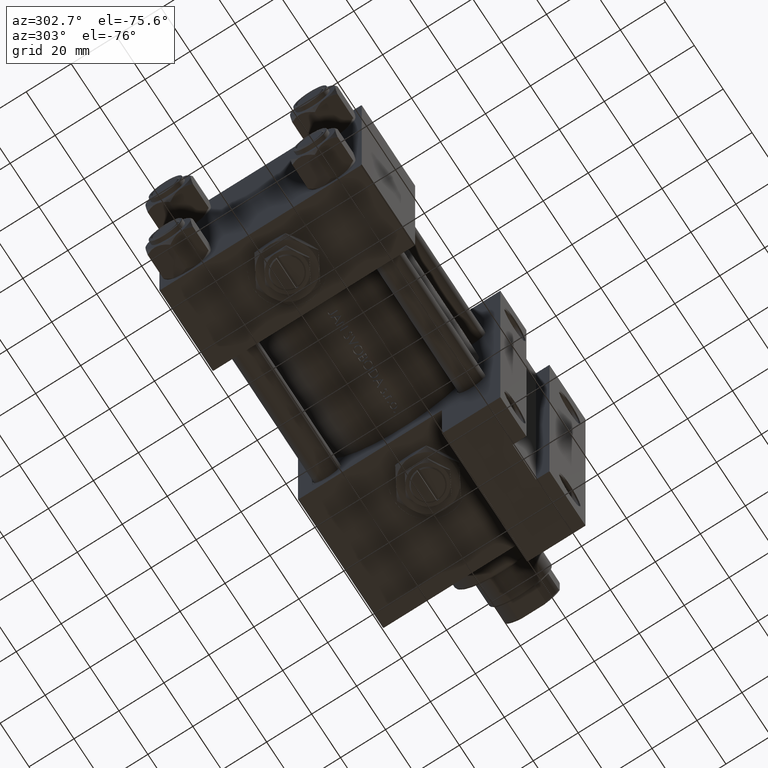
[diagram: clean part render]
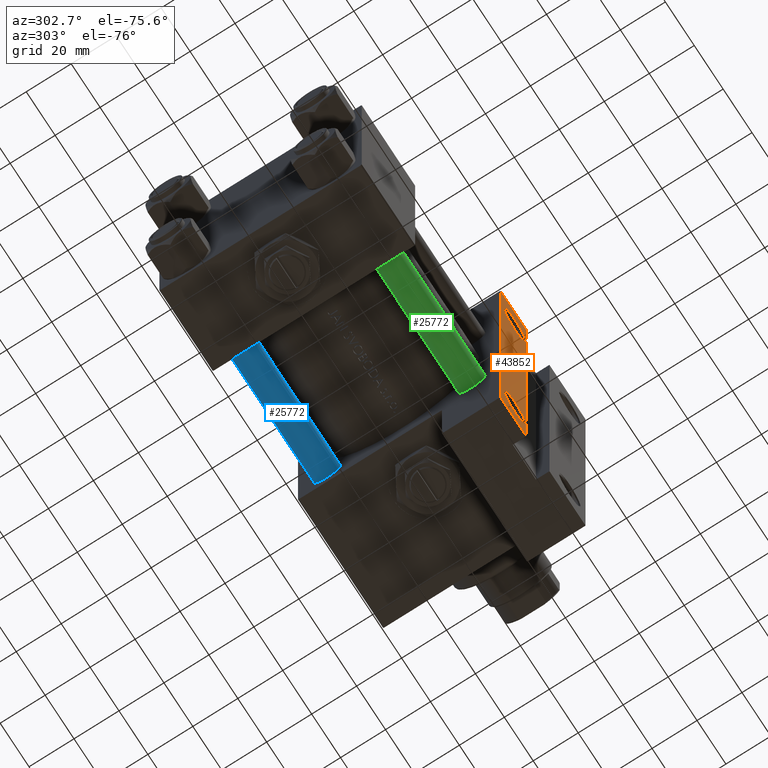
[diagram: same view with three faces highlighted in distinct colors, each labeled with its STEP entity id]
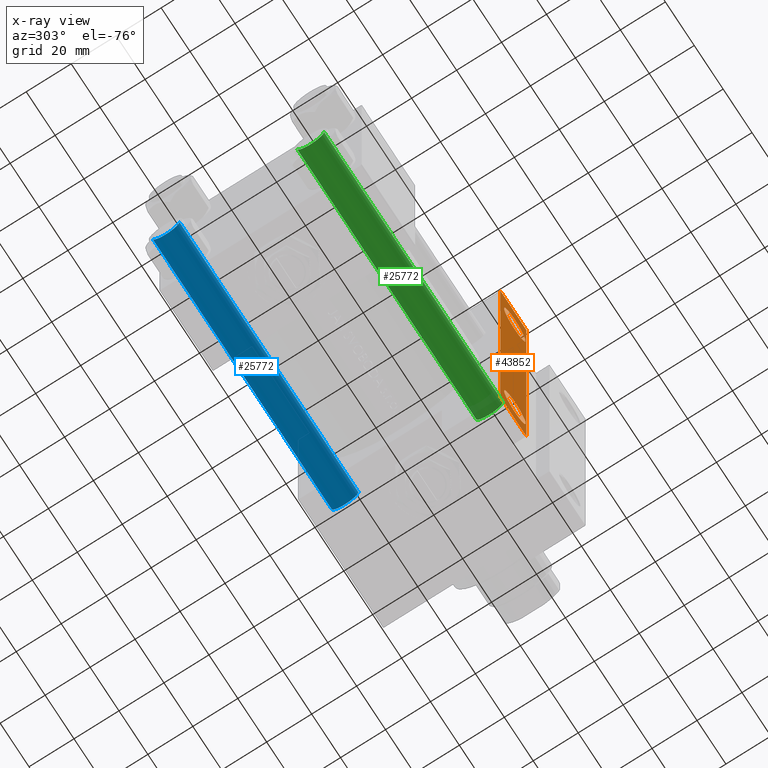
[diagram: x-ray of the same camera — body ghosted, the three highlighted faces saturated]
A machine part, auxiliary view with three faces highlighted in distinct colors.
The next image is the same camera in x-ray (body ghosted, the three faces saturated) — at least one of them is partly hidden behind the body in this view.
Their STEP definitions:

[orange] entity #43852 — the highlighted planar face has unit normal (0, -1, 0).
#439 = EDGE_CURVE ( 'NONE', #21124, #9593, #44333, .T. ) ;
#811 = CARTESIAN_POINT ( 'NONE',  ( 113.9999999999999858, 79.99999999999998579, -45.00000000000000000 ) ) ;
#1146 = VECTOR ( 'NONE', #14747, 1000.000000000000000 ) ;
#1724 = CARTESIAN_POINT ( 'NONE',  ( 96.00000000000000000, 79.99999999999998579, -45.00000000000000000 ) ) ;
#2461 = DIRECTION ( 'NONE',  ( 0.000000000000000000, 0.000000000000000000, -1.000000000000000000 ) ) ;
#3172 = ORIENTED_EDGE ( 'NONE', *, *, #5362, .T. ) ;
#5362 = EDGE_CURVE ( 'NONE', #9593, #21124, #12117, .T. ) ;
#5421 = CARTESIAN_POINT ( 'NONE',  ( 96.00000000000000000, 79.99999999999998579, -45.00000000000000000 ) ) ;
#6054 = DIRECTION ( 'NONE',  ( -0.000000000000000000, -0.000000000000000000, 1.000000000000000000 ) ) ;
#6083 = LINE ( 'NONE', #17670, #46973 ) ;
#6355 = EDGE_LOOP ( 'NONE', ( #30317, #12162 ) ) ;
#6755 = CIRCLE ( 'NONE', #21192, 7.499500000000019817 ) ;
#7430 = CARTESIAN_POINT ( 'NONE',  ( 113.9999999999999858, -79.99999999999997158, -45.00000000000000000 ) ) ;
#7731 = VECTOR ( 'NONE', #9270, 1000.000000000000000 ) ;
#7865 = DIRECTION ( 'NONE',  ( -1.000000000000000000, 0.000000000000000000, 0.000000000000000000 ) ) ;
#9270 = DIRECTION ( 'NONE',  ( 1.000000000000000000, 2.352167425053297897E-16, 0.000000000000000000 ) ) ;
#9593 = VERTEX_POINT ( 'NONE', #21770 ) ;
#11636 = DIRECTION ( 'NONE',  ( -0.000000000000000000, -0.000000000000000000, 1.000000000000000000 ) ) ;
#11684 = AXIS2_PLACEMENT_3D ( 'NONE', #27220, #11636, #7865 ) ;
#11795 = ORIENTED_EDGE ( 'NONE', *, *, #12217, .T. ) ;
#12117 = CIRCLE ( 'NONE', #31392, 7.499500000000019817 ) ;
#12162 = ORIENTED_EDGE ( 'NONE', *, *, #38115, .T. ) ;
#12217 = EDGE_CURVE ( 'NONE', #39429, #26146, #25809, .T. ) ;
#13545 = AXIS2_PLACEMENT_3D ( 'NONE', #32890, #2461, #41164 ) ;
#13690 = VERTEX_POINT ( 'NONE', #17810 ) ;
#13785 = FACE_BOUND ( 'NONE', #6355, .T. ) ;
#14747 = DIRECTION ( 'NONE',  ( -1.000000000000000000, 7.056502275159895171E-16, -0.000000000000000000 ) ) ;
#15733 = EDGE_CURVE ( 'NONE', #13690, #33169, #23702, .T. ) ;
#17670 = CARTESIAN_POINT ( 'NONE',  ( 113.9999999999999858, -79.99999999999997158, -45.00000000000000000 ) ) ;
#17758 = ORIENTED_EDGE ( 'NONE', *, *, #23619, .F. ) ;
#17810 = CARTESIAN_POINT ( 'NONE',  ( 98.50049999999993133, 62.00000000000000711, -45.00000000000000000 ) ) ;
#18407 = CARTESIAN_POINT ( 'NONE',  ( 95.99999999999998579, -79.99999999999998579, -45.00000000000000000 ) ) ;
#18853 = EDGE_CURVE ( 'NONE', #25256, #26146, #20634, .T. ) ;
#20634 = LINE ( 'NONE', #43488, #31568 ) ;
#21124 = VERTEX_POINT ( 'NONE', #43130 ) ;
#21192 = AXIS2_PLACEMENT_3D ( 'NONE', #44440, #32389, #21594 ) ;
#21594 = DIRECTION ( 'NONE',  ( -1.000000000000000000, 0.000000000000000000, 0.000000000000000000 ) ) ;
#21770 = CARTESIAN_POINT ( 'NONE',  ( 113.4994999999999692, -62.00000000000001421, -45.00000000000000000 ) ) ;
#21858 = DIRECTION ( 'NONE',  ( -0.000000000000000000, -0.000000000000000000, 1.000000000000000000 ) ) ;
#22331 = PLANE ( 'NONE',  #13545 ) ;
#23619 = EDGE_CURVE ( 'NONE', #39429, #46403, #6083, .T. ) ;
#23702 = CIRCLE ( 'NONE', #11684, 7.499500000000019817 ) ;
#25256 = VERTEX_POINT ( 'NONE', #5421 ) ;
#25809 = LINE ( 'NONE', #49181, #1146 ) ;
#25837 = FACE_BOUND ( 'NONE', #43068, .T. ) ;
#26146 = VERTEX_POINT ( 'NONE', #18407 ) ;
#27220 = CARTESIAN_POINT ( 'NONE',  ( 105.9999999999999574, 62.00000000000000711, -45.00000000000000000 ) ) ;
#27441 = ORIENTED_EDGE ( 'NONE', *, *, #45912, .T. ) ;
#28478 = EDGE_LOOP ( 'NONE', ( #17758, #11795, #30225, #27441 ) ) ;
#30225 = ORIENTED_EDGE ( 'NONE', *, *, #18853, .F. ) ;
#30317 = ORIENTED_EDGE ( 'NONE', *, *, #15733, .T. ) ;
#31392 = AXIS2_PLACEMENT_3D ( 'NONE', #33712, #6054, #41236 ) ;
#31568 = VECTOR ( 'NONE', #38999, 1000.000000000000000 ) ;
#32157 = LINE ( 'NONE', #1724, #7731 ) ;
#32325 = AXIS2_PLACEMENT_3D ( 'NONE', #37687, #21858, #40711 ) ;
#32389 = DIRECTION ( 'NONE',  ( -0.000000000000000000, -0.000000000000000000, 1.000000000000000000 ) ) ;
#32890 = CARTESIAN_POINT ( 'NONE',  ( 155.0000000000000000, 45.00000000000001421, -45.00000000000000000 ) ) ;
#32983 = DIRECTION ( 'NONE',  ( 0.000000000000000000, 1.000000000000000000, 0.000000000000000000 ) ) ;
#33169 = VERTEX_POINT ( 'NONE', #35429 ) ;
#33712 = CARTESIAN_POINT ( 'NONE',  ( 105.9999999999999574, -62.00000000000001421, -45.00000000000000000 ) ) ;
#35429 = CARTESIAN_POINT ( 'NONE',  ( 113.4994999999999692, 62.00000000000000711, -45.00000000000000000 ) ) ;
#37144 = FACE_OUTER_BOUND ( 'NONE', #28478, .T. ) ;
#37687 = CARTESIAN_POINT ( 'NONE',  ( 105.9999999999999574, -62.00000000000001421, -45.00000000000000000 ) ) ;
#38115 = EDGE_CURVE ( 'NONE', #33169, #13690, #6755, .T. ) ;
#38999 = DIRECTION ( 'NONE',  ( 0.000000000000000000, -1.000000000000000000, 0.000000000000000000 ) ) ;
#39429 = VERTEX_POINT ( 'NONE', #7430 ) ;
#40711 = DIRECTION ( 'NONE',  ( -1.000000000000000000, 0.000000000000000000, 0.000000000000000000 ) ) ;
#41164 = DIRECTION ( 'NONE',  ( -1.000000000000000000, 0.000000000000000000, -0.000000000000000000 ) ) ;
#41236 = DIRECTION ( 'NONE',  ( -1.000000000000000000, 0.000000000000000000, 0.000000000000000000 ) ) ;
#43068 = EDGE_LOOP ( 'NONE', ( #44645, #3172 ) ) ;
#43130 = CARTESIAN_POINT ( 'NONE',  ( 98.50049999999993133, -62.00000000000001421, -45.00000000000000000 ) ) ;
#43488 = CARTESIAN_POINT ( 'NONE',  ( 96.00000000000000000, 45.00000000000001421, -45.00000000000000000 ) ) ;
#43852 = ADVANCED_FACE ( 'NONE', ( #37144, #13785, #25837 ), #22331, .T. ) ;
#44333 = CIRCLE ( 'NONE', #32325, 7.499500000000019817 ) ;
#44440 = CARTESIAN_POINT ( 'NONE',  ( 105.9999999999999574, 62.00000000000000711, -45.00000000000000000 ) ) ;
#44645 = ORIENTED_EDGE ( 'NONE', *, *, #439, .T. ) ;
#45912 = EDGE_CURVE ( 'NONE', #25256, #46403, #32157, .T. ) ;
#46403 = VERTEX_POINT ( 'NONE', #811 ) ;
#46973 = VECTOR ( 'NONE', #32983, 1000.000000000000000 ) ;
#49181 = CARTESIAN_POINT ( 'NONE',  ( 95.99999999999998579, -79.99999999999998579, -45.00000000000000000 ) ) ;

[blue] entity #25772 — the highlighted cylindrical surface (edge-blend (fillet) strip) has radius 6 mm, axis along (-1, -0, 0).
#1725 = CARTESIAN_POINT ( 'NONE',  ( 6.000000000000000888, 7.347880794884120722E-16, 0.4999999999999865663 ) ) ;
#2341 = CARTESIAN_POINT ( 'NONE',  ( 0.000000000000000000, 0.000000000000000000, 124.5000000000000000 ) ) ;
#4310 = ORIENTED_EDGE ( 'NONE', *, *, #8563, .F. ) ;
#5129 = VECTOR ( 'NONE', #14601, 1000.000000000000000 ) ;
#5440 = VERTEX_POINT ( 'NONE', #1725 ) ;
#7397 = CARTESIAN_POINT ( 'NONE',  ( 6.000000000000000888, 7.347880794884120722E-16, 125.0000000000000000 ) ) ;
#7478 = DIRECTION ( 'NONE',  ( -1.000000000000000000, 0.000000000000000000, 0.000000000000000000 ) ) ;
#8563 = EDGE_CURVE ( 'NONE', #30066, #5440, #41838, .T. ) ;
#9892 = CARTESIAN_POINT ( 'NONE',  ( -6.000000000000000888, 0.000000000000000000, 0.4999999999999865663 ) ) ;
#11843 = VERTEX_POINT ( 'NONE', #12088 ) ;
#12088 = CARTESIAN_POINT ( 'NONE',  ( -6.000000000000000888, 0.000000000000000000, 124.5000000000000000 ) ) ;
#13153 = DIRECTION ( 'NONE',  ( 1.000000000000000000, 0.000000000000000000, 0.000000000000000000 ) ) ;
#14062 = DIRECTION ( 'NONE',  ( 1.000000000000000000, 0.000000000000000000, 0.000000000000000000 ) ) ;
#14289 = EDGE_CURVE ( 'NONE', #30066, #11843, #22056, .T. ) ;
#14601 = DIRECTION ( 'NONE',  ( -0.000000000000000000, -0.000000000000000000, -1.000000000000000000 ) ) ;
#18381 = CARTESIAN_POINT ( 'NONE',  ( -6.000000000000000888, 0.000000000000000000, 125.0000000000000000 ) ) ;
#21404 = DIRECTION ( 'NONE',  ( -0.000000000000000000, -0.000000000000000000, -1.000000000000000000 ) ) ;
#21718 = DIRECTION ( 'NONE',  ( 0.000000000000000000, 0.000000000000000000, -1.000000000000000000 ) ) ;
#22056 = CIRCLE ( 'NONE', #23667, 6.000000000000000888 ) ;
#23667 = AXIS2_PLACEMENT_3D ( 'NONE', #2341, #21718, #13153 ) ;
#24112 = CARTESIAN_POINT ( 'NONE',  ( 6.000000000000000888, 7.347880794884120722E-16, 124.5000000000000000 ) ) ;
#24766 = VECTOR ( 'NONE', #26739, 1000.000000000000000 ) ;
#25529 = AXIS2_PLACEMENT_3D ( 'NONE', #40957, #29383, #14062 ) ;
#25772 = ADVANCED_FACE ( 'NONE', ( #45944 ), #36968, .T. ) ;
#26211 = ORIENTED_EDGE ( 'NONE', *, *, #14289, .T. ) ;
#26739 = DIRECTION ( 'NONE',  ( -0.000000000000000000, -0.000000000000000000, -1.000000000000000000 ) ) ;
#29076 = ORIENTED_EDGE ( 'NONE', *, *, #41308, .T. ) ;
#29383 = DIRECTION ( 'NONE',  ( -0.000000000000000000, -0.000000000000000000, 1.000000000000000000 ) ) ;
#30066 = VERTEX_POINT ( 'NONE', #24112 ) ;
#32635 = VERTEX_POINT ( 'NONE', #9892 ) ;
#34133 = CARTESIAN_POINT ( 'NONE',  ( 0.000000000000000000, 0.000000000000000000, 125.0000000000000000 ) ) ;
#36968 = CYLINDRICAL_SURFACE ( 'NONE', #44910, 6.000000000000000888 ) ;
#37961 = EDGE_CURVE ( 'NONE', #11843, #32635, #49037, .T. ) ;
#40957 = CARTESIAN_POINT ( 'NONE',  ( 0.000000000000000000, 0.000000000000000000, 0.4999999999999865663 ) ) ;
#41308 = EDGE_CURVE ( 'NONE', #32635, #5440, #43171, .T. ) ;
#41838 = LINE ( 'NONE', #7397, #24766 ) ;
#43171 = CIRCLE ( 'NONE', #25529, 6.000000000000000888 ) ;
#44149 = ORIENTED_EDGE ( 'NONE', *, *, #37961, .T. ) ;
#44477 = EDGE_LOOP ( 'NONE', ( #4310, #26211, #44149, #29076 ) ) ;
#44910 = AXIS2_PLACEMENT_3D ( 'NONE', #34133, #21404, #7478 ) ;
#45944 = FACE_OUTER_BOUND ( 'NONE', #44477, .T. ) ;
#49037 = LINE ( 'NONE', #18381, #5129 ) ;

[green] entity #25772 — the highlighted cylindrical surface (edge-blend (fillet) strip) has radius 6 mm, axis along (1, 0, 0).
#1725 = CARTESIAN_POINT ( 'NONE',  ( 6.000000000000000888, 7.347880794884120722E-16, 0.4999999999999865663 ) ) ;
#2341 = CARTESIAN_POINT ( 'NONE',  ( 0.000000000000000000, 0.000000000000000000, 124.5000000000000000 ) ) ;
#4310 = ORIENTED_EDGE ( 'NONE', *, *, #8563, .F. ) ;
#5129 = VECTOR ( 'NONE', #14601, 1000.000000000000000 ) ;
#5440 = VERTEX_POINT ( 'NONE', #1725 ) ;
#7397 = CARTESIAN_POINT ( 'NONE',  ( 6.000000000000000888, 7.347880794884120722E-16, 125.0000000000000000 ) ) ;
#7478 = DIRECTION ( 'NONE',  ( -1.000000000000000000, 0.000000000000000000, 0.000000000000000000 ) ) ;
#8563 = EDGE_CURVE ( 'NONE', #30066, #5440, #41838, .T. ) ;
#9892 = CARTESIAN_POINT ( 'NONE',  ( -6.000000000000000888, 0.000000000000000000, 0.4999999999999865663 ) ) ;
#11843 = VERTEX_POINT ( 'NONE', #12088 ) ;
#12088 = CARTESIAN_POINT ( 'NONE',  ( -6.000000000000000888, 0.000000000000000000, 124.5000000000000000 ) ) ;
#13153 = DIRECTION ( 'NONE',  ( 1.000000000000000000, 0.000000000000000000, 0.000000000000000000 ) ) ;
#14062 = DIRECTION ( 'NONE',  ( 1.000000000000000000, 0.000000000000000000, 0.000000000000000000 ) ) ;
#14289 = EDGE_CURVE ( 'NONE', #30066, #11843, #22056, .T. ) ;
#14601 = DIRECTION ( 'NONE',  ( -0.000000000000000000, -0.000000000000000000, -1.000000000000000000 ) ) ;
#18381 = CARTESIAN_POINT ( 'NONE',  ( -6.000000000000000888, 0.000000000000000000, 125.0000000000000000 ) ) ;
#21404 = DIRECTION ( 'NONE',  ( -0.000000000000000000, -0.000000000000000000, -1.000000000000000000 ) ) ;
#21718 = DIRECTION ( 'NONE',  ( 0.000000000000000000, 0.000000000000000000, -1.000000000000000000 ) ) ;
#22056 = CIRCLE ( 'NONE', #23667, 6.000000000000000888 ) ;
#23667 = AXIS2_PLACEMENT_3D ( 'NONE', #2341, #21718, #13153 ) ;
#24112 = CARTESIAN_POINT ( 'NONE',  ( 6.000000000000000888, 7.347880794884120722E-16, 124.5000000000000000 ) ) ;
#24766 = VECTOR ( 'NONE', #26739, 1000.000000000000000 ) ;
#25529 = AXIS2_PLACEMENT_3D ( 'NONE', #40957, #29383, #14062 ) ;
#25772 = ADVANCED_FACE ( 'NONE', ( #45944 ), #36968, .T. ) ;
#26211 = ORIENTED_EDGE ( 'NONE', *, *, #14289, .T. ) ;
#26739 = DIRECTION ( 'NONE',  ( -0.000000000000000000, -0.000000000000000000, -1.000000000000000000 ) ) ;
#29076 = ORIENTED_EDGE ( 'NONE', *, *, #41308, .T. ) ;
#29383 = DIRECTION ( 'NONE',  ( -0.000000000000000000, -0.000000000000000000, 1.000000000000000000 ) ) ;
#30066 = VERTEX_POINT ( 'NONE', #24112 ) ;
#32635 = VERTEX_POINT ( 'NONE', #9892 ) ;
#34133 = CARTESIAN_POINT ( 'NONE',  ( 0.000000000000000000, 0.000000000000000000, 125.0000000000000000 ) ) ;
#36968 = CYLINDRICAL_SURFACE ( 'NONE', #44910, 6.000000000000000888 ) ;
#37961 = EDGE_CURVE ( 'NONE', #11843, #32635, #49037, .T. ) ;
#40957 = CARTESIAN_POINT ( 'NONE',  ( 0.000000000000000000, 0.000000000000000000, 0.4999999999999865663 ) ) ;
#41308 = EDGE_CURVE ( 'NONE', #32635, #5440, #43171, .T. ) ;
#41838 = LINE ( 'NONE', #7397, #24766 ) ;
#43171 = CIRCLE ( 'NONE', #25529, 6.000000000000000888 ) ;
#44149 = ORIENTED_EDGE ( 'NONE', *, *, #37961, .T. ) ;
#44477 = EDGE_LOOP ( 'NONE', ( #4310, #26211, #44149, #29076 ) ) ;
#44910 = AXIS2_PLACEMENT_3D ( 'NONE', #34133, #21404, #7478 ) ;
#45944 = FACE_OUTER_BOUND ( 'NONE', #44477, .T. ) ;
#49037 = LINE ( 'NONE', #18381, #5129 ) ;